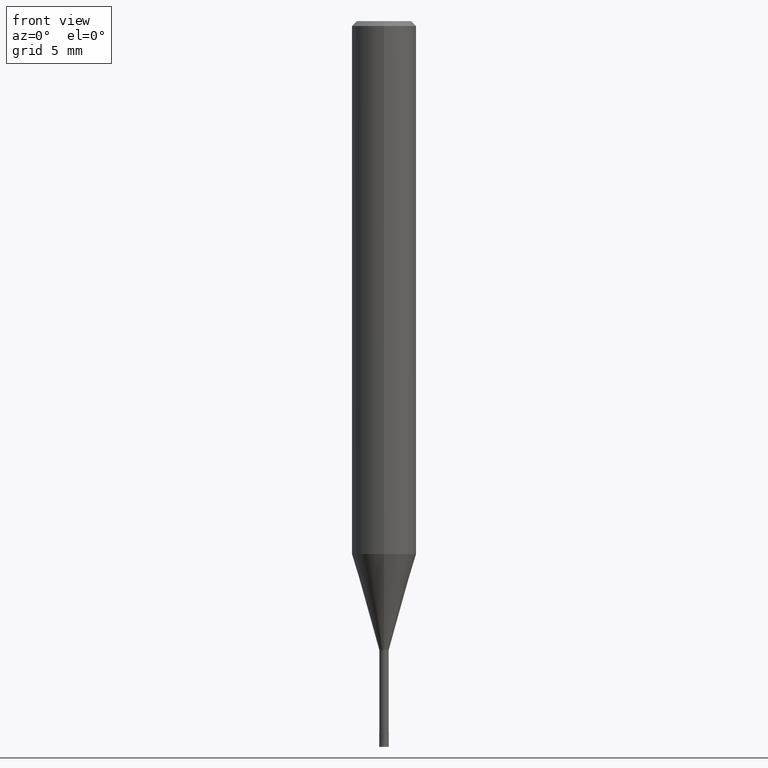
[diagram: clean part render]
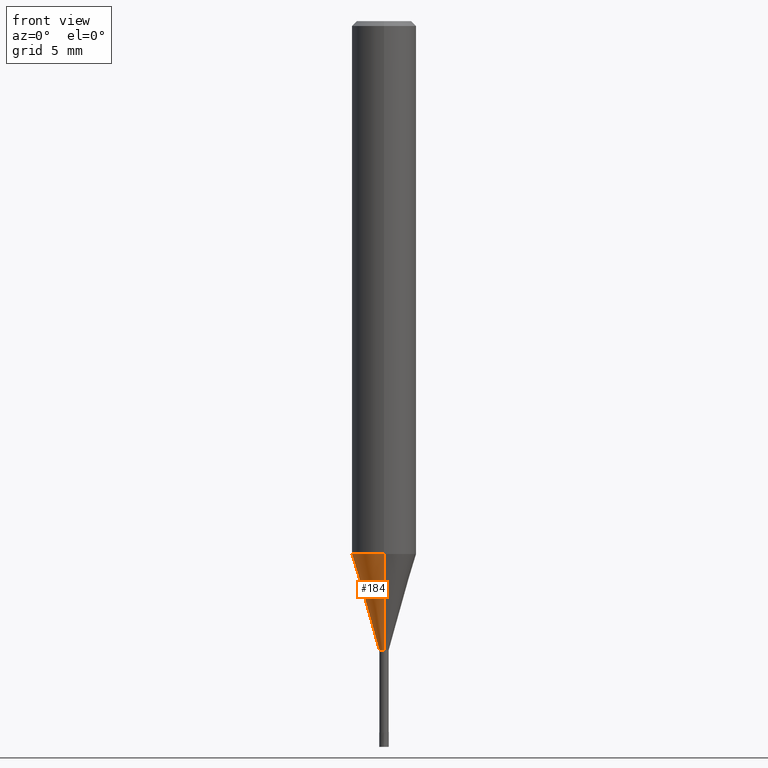
[diagram: same view with one face highlighted and labeled with its STEP entity id]
A machine part, front view. The second image highlights one B-rep face of the part: STEP entity #184.
In plain terms, the highlighted conical surface has half-angle 16.001 deg.
Its self-contained STEP definition (entity closure, byte-faithful):
#96=VERTEX_POINT('',#234);
#120=EDGE_CURVE('',#148,#96,#259,.T.);
#136=EDGE_CURVE('',#190,#96,#278,.T.);
#146=EDGE_CURVE('',#148,#208,#290,.T.);
#148=VERTEX_POINT('',#292);
#180=EDGE_CURVE('',#208,#190,#329,.T.);
#184=ADVANCED_FACE('',(#333),#334,.T.);
#190=VERTEX_POINT('',#340);
#208=VERTEX_POINT('',#361);
#234=CARTESIAN_POINT('',(0.0,0.28995,-39.0));
#259=CIRCLE('',#415,0.28995);
#278=LINE('',#439,#440);
#290=LINE('',#454,#455);
#292=CARTESIAN_POINT('',(3.55074612290798E-017,-0.28995,-39.0));
#329=CIRCLE('',#504,1.99995);
#333=FACE_OUTER_BOUND('',#509,.T.);
#334=CONICAL_SURFACE('',#510,1.14495,0.279273950674422);
#340=CARTESIAN_POINT('',(0.0,1.99995,-33.037));
#361=CARTESIAN_POINT('',(2.44915147732706E-016,-1.99995,-33.037));
#415=AXIS2_PLACEMENT_3D('',#573,#574,#575);
#439=CARTESIAN_POINT('',(-1.40211304480893E-016,1.14495,-36.0185));
#440=VECTOR('',#598,1.0);
#454=CARTESIAN_POINT('',(1.40211304480893E-016,-1.14495,-36.0185));
#455=VECTOR('',#618,1.0);
#504=AXIS2_PLACEMENT_3D('',#672,#673,#674);
#509=EDGE_LOOP('',(#679,#680,#681,#682));
#510=AXIS2_PLACEMENT_3D('',#683,#684,#685);
#573=CARTESIAN_POINT('',(0.0,0.0,-39.0));
#574=DIRECTION('',(0.0,0.0,-1.0));
#575=DIRECTION('',(0.0,1.0,0.0));
#598=DIRECTION('',(3.37572295972149E-017,-0.275657802132482,-0.961255832816368));
#618=DIRECTION('',(3.37572295972149E-017,-0.275657802132482,0.961255832816368));
#672=CARTESIAN_POINT('',(0.0,0.0,-33.037));
#673=DIRECTION('',(0.0,0.0,-1.0));
#674=DIRECTION('',(0.0,1.0,0.0));
#679=ORIENTED_EDGE('',*,*,#136,.T.);
#680=ORIENTED_EDGE('',*,*,#120,.F.);
#681=ORIENTED_EDGE('',*,*,#146,.T.);
#682=ORIENTED_EDGE('',*,*,#180,.T.);
#683=CARTESIAN_POINT('',(0.0,0.0,-36.0185));
#684=DIRECTION('',(-0.0,-0.0,1.0));
#685=DIRECTION('',(0.0,1.0,0.0));